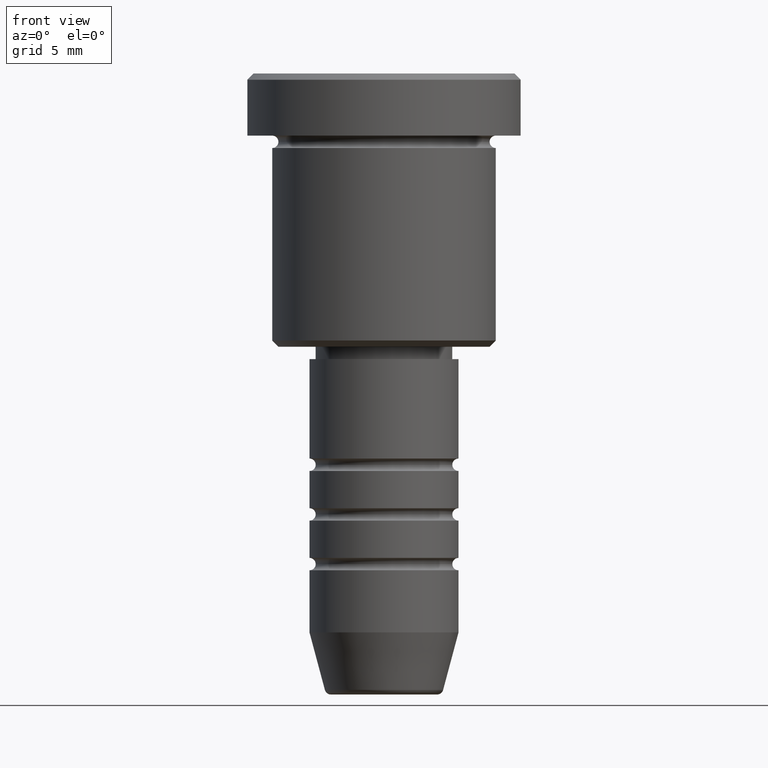
[diagram: clean part render]
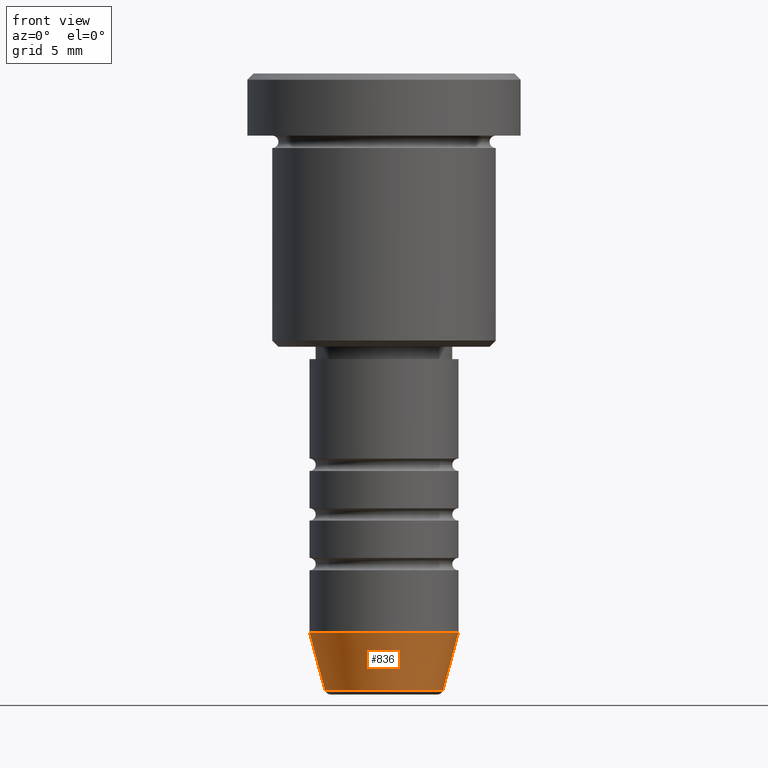
[diagram: same view with one face highlighted and labeled with its STEP entity id]
A machine part, front view. The second image highlights one B-rep face of the part: STEP entity #836.
In plain terms, the highlighted conical surface has half-angle 15 deg.
Its self-contained STEP definition (entity closure, byte-faithful):
#3 = ORIENTED_EDGE ( 'NONE', *, *, #472, .T. ) ;
#57 = LINE ( 'NONE', #351, #662 ) ;
#76 = DIRECTION ( 'NONE',  ( 0.2588190451025213501, 0.000000000000000000, 0.9659258262890680902 ) ) ;
#87 = CARTESIAN_POINT ( 'NONE',  ( -4.759553456999437770, 6.588326350684600291E-16, -49.62940952255126348 ) ) ;
#93 = CARTESIAN_POINT ( 'NONE',  ( -6.000000000000000000, 7.347880794884119736E-16, -45.00000000000000711 ) ) ;
#188 = DIRECTION ( 'NONE',  ( -0.000000000000000000, -0.000000000000000000, 1.000000000000000000 ) ) ;
#212 = VERTEX_POINT ( 'NONE', #335 ) ;
#244 = DIRECTION ( 'NONE',  ( 1.000000000000000000, 0.000000000000000000, 0.000000000000000000 ) ) ;
#257 = CARTESIAN_POINT ( 'NONE',  ( 0.000000000000000000, 0.000000000000000000, -45.00000000000000711 ) ) ;
#291 = LINE ( 'NONE', #93, #982 ) ;
#316 = CARTESIAN_POINT ( 'NONE',  ( 6.000000000000000000, 0.000000000000000000, -45.00000000000000711 ) ) ;
#332 = ORIENTED_EDGE ( 'NONE', *, *, #1176, .F. ) ;
#335 = CARTESIAN_POINT ( 'NONE',  ( 4.759553456999437770, 0.000000000000000000, -49.62940952255126348 ) ) ;
#337 = CIRCLE ( 'NONE', #1000, 6.000000000000000000 ) ;
#351 = CARTESIAN_POINT ( 'NONE',  ( 6.000000000000000000, 0.000000000000000000, -45.00000000000000711 ) ) ;
#399 = EDGE_LOOP ( 'NONE', ( #682, #490, #3, #332 ) ) ;
#467 = AXIS2_PLACEMENT_3D ( 'NONE', #1012, #928, #561 ) ;
#472 = EDGE_CURVE ( 'NONE', #212, #898, #57, .T. ) ;
#490 = ORIENTED_EDGE ( 'NONE', *, *, #613, .T. ) ;
#543 = VERTEX_POINT ( 'NONE', #87 ) ;
#561 = DIRECTION ( 'NONE',  ( 1.000000000000000000, 0.000000000000000000, 0.000000000000000000 ) ) ;
#588 = EDGE_CURVE ( 'NONE', #543, #735, #291, .T. ) ;
#594 = CIRCLE ( 'NONE', #467, 4.759553456999437770 ) ;
#613 = EDGE_CURVE ( 'NONE', #543, #212, #594, .T. ) ;
#658 = CARTESIAN_POINT ( 'NONE',  ( -6.000000000000000000, 7.347880794884119736E-16, -45.00000000000000711 ) ) ;
#662 = VECTOR ( 'NONE', #76, 1000.000000000000000 ) ;
#675 = DIRECTION ( 'NONE',  ( -0.000000000000000000, -0.000000000000000000, 1.000000000000000000 ) ) ;
#682 = ORIENTED_EDGE ( 'NONE', *, *, #588, .F. ) ;
#735 = VERTEX_POINT ( 'NONE', #658 ) ;
#836 = ADVANCED_FACE ( 'NONE', ( #1124 ), #939, .T. ) ;
#898 = VERTEX_POINT ( 'NONE', #316 ) ;
#910 = DIRECTION ( 'NONE',  ( 1.000000000000000000, 0.000000000000000000, 0.000000000000000000 ) ) ;
#928 = DIRECTION ( 'NONE',  ( -0.000000000000000000, -0.000000000000000000, 1.000000000000000000 ) ) ;
#939 = CONICAL_SURFACE ( 'NONE', #1112, 6.000000000000000000, 0.2617993877991500740 ) ;
#982 = VECTOR ( 'NONE', #1021, 1000.000000000000000 ) ;
#1000 = AXIS2_PLACEMENT_3D ( 'NONE', #257, #188, #910 ) ;
#1012 = CARTESIAN_POINT ( 'NONE',  ( 0.000000000000000000, 0.000000000000000000, -49.62940952255126348 ) ) ;
#1021 = DIRECTION ( 'NONE',  ( -0.2588190451025213501, 3.169619151431772337E-17, 0.9659258262890680902 ) ) ;
#1112 = AXIS2_PLACEMENT_3D ( 'NONE', #1133, #675, #244 ) ;
#1124 = FACE_OUTER_BOUND ( 'NONE', #399, .T. ) ;
#1133 = CARTESIAN_POINT ( 'NONE',  ( 0.000000000000000000, 0.000000000000000000, -45.00000000000000711 ) ) ;
#1176 = EDGE_CURVE ( 'NONE', #735, #898, #337, .T. ) ;